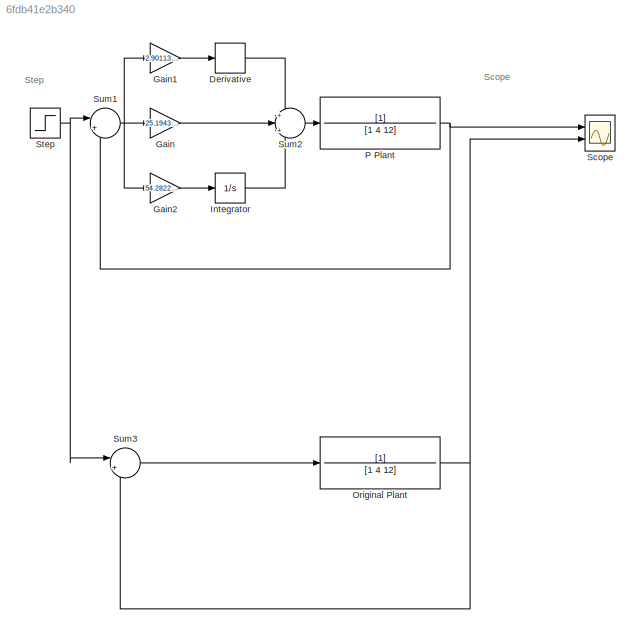
MODEL slx_6fdb41e2b340
KIND model
CONFIG AbsTol = auto
CONFIG EnableMultiTasking = off
CONFIG FixedStep = auto
CONFIG MaxStep = auto
CONFIG MinStep = auto
CONFIG RelTol = 1e-3
CONFIG SampleTimeConstraint = Unconstrained
CONFIG SolverName = ode45
CONFIG StartTime = 0.0
CONFIG StopTime = 10.0
BLOCK [Derivative] Derivative
  Commented = through
BLOCK [Gain] Gain
  Gain = 25.1943458608357
BLOCK [Gain] Gain1
  Commented = through
  Gain = 2.90113293287881
BLOCK [Gain] Gain2
  Commented = through
  Gain = 54.2822438730301
BLOCK [Integrator] Integrator
  Commented = through
  Ports = [1, 1]
BLOCK [TransferFcn] Original Plant
  Denominator = [1 4 12]
BLOCK [TransferFcn] P Plant
  Denominator = [1 4 12]
BLOCK [Scope] Scope
  Floating = off
  NumInputPorts = 2
  Ports = [2]
  ScopeSpecificationString = Simulink.scopes.TimeScopeBlockCfg('CurrentConfiguration', extmgr.ConfigurationSet(extmgr.Configuration('Core','General UI',true),extmgr.Configuration('Core','Source UI',true),extmgr.Configuration('Sources','WiredSimulink',true),extmgr.Configuration('Visuals','Time Domain',true,'SerializedDisplays',{struct('MinYLimReal','-0.11486','MaxYLimReal','1.03378','YLabelReal','','MinYLimMag','0.00000','MaxY...<+1373ch>
BLOCK [Step] Step
  SampleTime = 0
BLOCK [Sum] Sum1
  Inputs = |+-
  Ports = [2, 1]
BLOCK [Sum] Sum2
  Inputs = +|+|+
  Ports = [3, 1]
BLOCK [Sum] Sum3
  Inputs = |+-
  Ports = [2, 1]
ANNOTATION (root): Scope
ANNOTATION (root): Step
LINE Derivative:1 -> Sum2:1
LINE Gain1:1 -> Derivative:1
LINE Gain2:1 -> Integrator:1
LINE Gain:1 -> Sum2:2
LINE Integrator:1 -> Sum2:3
NET Original Plant:1 -> Scope:2, Sum3:2
NET P Plant:1 -> Scope:1, Sum1:2
NET Step:1 -> Sum1:1, Sum3:1
NET Sum1:1 -> Gain1:1, Gain2:1, Gain:1
LINE Sum2:1 -> P Plant:1
LINE Sum3:1 -> Original Plant:1
note: NET lines group one-source signal fan-out (src -> all destinations, sorted); 1:1 wires keep LINE
